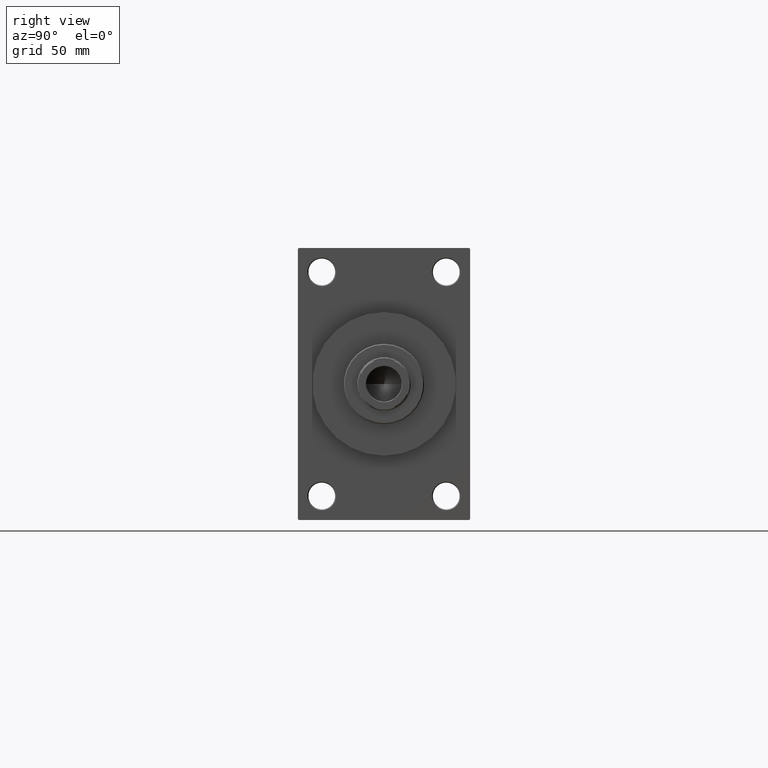
[diagram: clean part render]
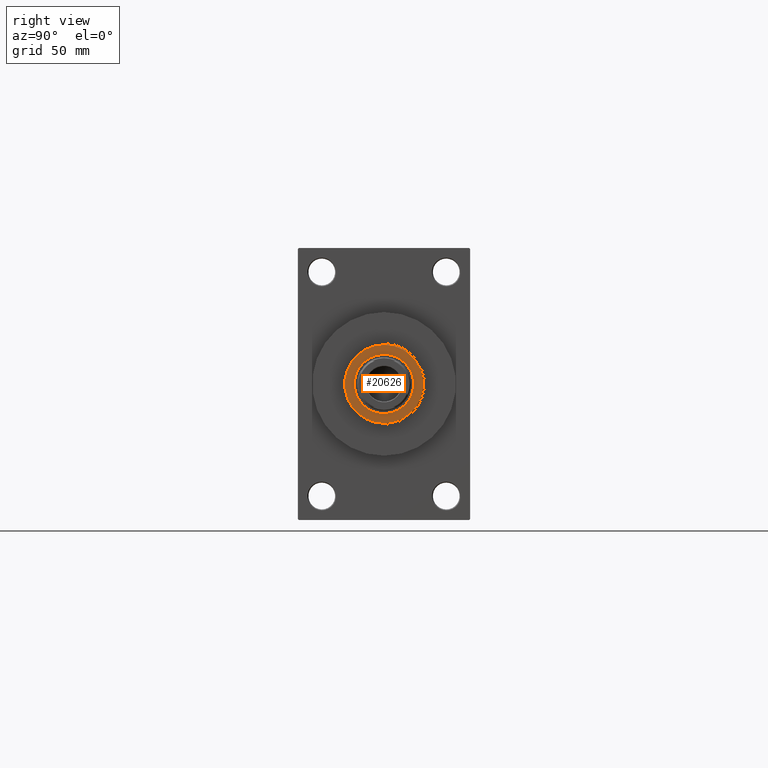
[diagram: same view with one face highlighted and labeled with its STEP entity id]
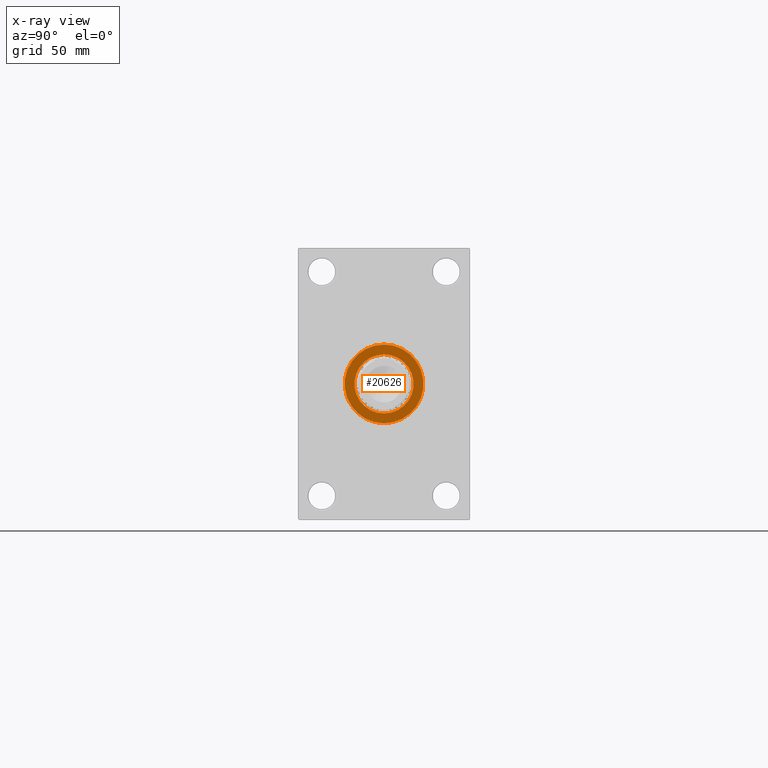
[diagram: x-ray of the same camera — body ghosted, the highlighted face saturated]
A machine part, right view. The second image highlights one B-rep face of the part: STEP entity #20626.
The next image is the same camera in x-ray: the body ghosted, the highlighted face saturated — about 0% of this face is hidden behind the body in this view.
In plain terms, the highlighted planar face has unit normal (1, -0, -0).
Its self-contained STEP definition (entity closure, byte-faithful):
#124 = CARTESIAN_POINT ( 'NONE',  ( -20.50000000000001776, 0.000000000000000000, 54.26000000000000512 ) ) ;
#1105 = CARTESIAN_POINT ( 'NONE',  ( 0.000000000000000000, 0.000000000000000000, 54.26000000000000512 ) ) ;
#1565 = AXIS2_PLACEMENT_3D ( 'NONE', #27525, #42570, #34439 ) ;
#1813 = EDGE_CURVE ( 'NONE', #29128, #16348, #14053, .T. ) ;
#2485 = VERTEX_POINT ( 'NONE', #25328 ) ;
#3507 = CARTESIAN_POINT ( 'NONE',  ( 15.50000000000000000, 0.000000000000000000, 54.26000000000000512 ) ) ;
#3908 = DIRECTION ( 'NONE',  ( 0.000000000000000000, 0.000000000000000000, 1.000000000000000000 ) ) ;
#5536 = EDGE_CURVE ( 'NONE', #16348, #29128, #18644, .T. ) ;
#8552 = CARTESIAN_POINT ( 'NONE',  ( 0.000000000000000000, 0.000000000000000000, 54.26000000000000512 ) ) ;
#11620 = DIRECTION ( 'NONE',  ( 0.000000000000000000, 0.000000000000000000, 1.000000000000000000 ) ) ;
#14053 = CIRCLE ( 'NONE', #43678, 20.50000000000001776 ) ;
#14406 = DIRECTION ( 'NONE',  ( 1.000000000000000000, 0.000000000000000000, 0.000000000000000000 ) ) ;
#16348 = VERTEX_POINT ( 'NONE', #28185 ) ;
#17410 = FACE_OUTER_BOUND ( 'NONE', #46317, .T. ) ;
#17507 = AXIS2_PLACEMENT_3D ( 'NONE', #42953, #32644, #24797 ) ;
#18644 = CIRCLE ( 'NONE', #30817, 20.50000000000001776 ) ;
#18690 = CARTESIAN_POINT ( 'NONE',  ( 0.000000000000000000, 0.000000000000000000, 54.26000000000000512 ) ) ;
#20626 = ADVANCED_FACE ( 'NONE', ( #25025, #17410 ), #24335, .T. ) ;
#24335 = PLANE ( 'NONE',  #17507 ) ;
#24797 = DIRECTION ( 'NONE',  ( 1.000000000000000000, 0.000000000000000000, -0.000000000000000000 ) ) ;
#25025 = FACE_BOUND ( 'NONE', #41589, .T. ) ;
#25328 = CARTESIAN_POINT ( 'NONE',  ( -15.50000000000000000, 1.898202538678397557E-15, 54.26000000000000512 ) ) ;
#26894 = DIRECTION ( 'NONE',  ( 1.000000000000000000, 0.000000000000000000, 0.000000000000000000 ) ) ;
#27525 = CARTESIAN_POINT ( 'NONE',  ( 0.000000000000000000, 0.000000000000000000, 54.26000000000000512 ) ) ;
#28114 = EDGE_CURVE ( 'NONE', #41822, #2485, #31993, .T. ) ;
#28185 = CARTESIAN_POINT ( 'NONE',  ( 20.50000000000001776, 2.541142108230759057E-15, 54.26000000000000512 ) ) ;
#29128 = VERTEX_POINT ( 'NONE', #124 ) ;
#29906 = AXIS2_PLACEMENT_3D ( 'NONE', #18690, #3908, #14406 ) ;
#30817 = AXIS2_PLACEMENT_3D ( 'NONE', #8552, #31165, #26894 ) ;
#31165 = DIRECTION ( 'NONE',  ( 0.000000000000000000, 0.000000000000000000, 1.000000000000000000 ) ) ;
#31993 = CIRCLE ( 'NONE', #1565, 15.50000000000000000 ) ;
#32644 = DIRECTION ( 'NONE',  ( 0.000000000000000000, 0.000000000000000000, 1.000000000000000000 ) ) ;
#33387 = ORIENTED_EDGE ( 'NONE', *, *, #5536, .T. ) ;
#34439 = DIRECTION ( 'NONE',  ( 1.000000000000000000, 0.000000000000000000, 0.000000000000000000 ) ) ;
#36006 = CIRCLE ( 'NONE', #29906, 15.50000000000000000 ) ;
#36420 = DIRECTION ( 'NONE',  ( 1.000000000000000000, 0.000000000000000000, 0.000000000000000000 ) ) ;
#37312 = EDGE_CURVE ( 'NONE', #2485, #41822, #36006, .T. ) ;
#41589 = EDGE_LOOP ( 'NONE', ( #41739, #46810 ) ) ;
#41739 = ORIENTED_EDGE ( 'NONE', *, *, #28114, .F. ) ;
#41822 = VERTEX_POINT ( 'NONE', #3507 ) ;
#42570 = DIRECTION ( 'NONE',  ( 0.000000000000000000, 0.000000000000000000, 1.000000000000000000 ) ) ;
#42953 = CARTESIAN_POINT ( 'NONE',  ( 0.000000000000000000, 0.000000000000000000, 54.26000000000000512 ) ) ;
#43678 = AXIS2_PLACEMENT_3D ( 'NONE', #1105, #11620, #36420 ) ;
#46317 = EDGE_LOOP ( 'NONE', ( #46642, #33387 ) ) ;
#46642 = ORIENTED_EDGE ( 'NONE', *, *, #1813, .T. ) ;
#46810 = ORIENTED_EDGE ( 'NONE', *, *, #37312, .F. ) ;